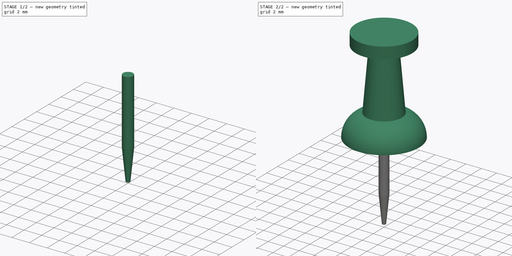
[diagram: build sequence overview — one tinted view per stage of 2, left to right]
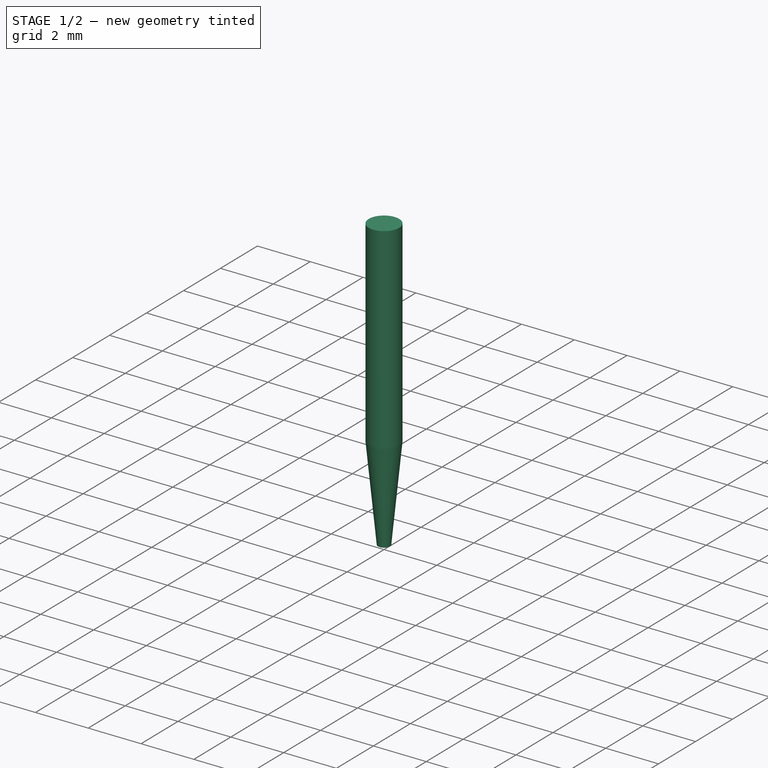
[diagram: stage 1 of 2 — iso view after this stage's code; geometry added in this stage tinted green]
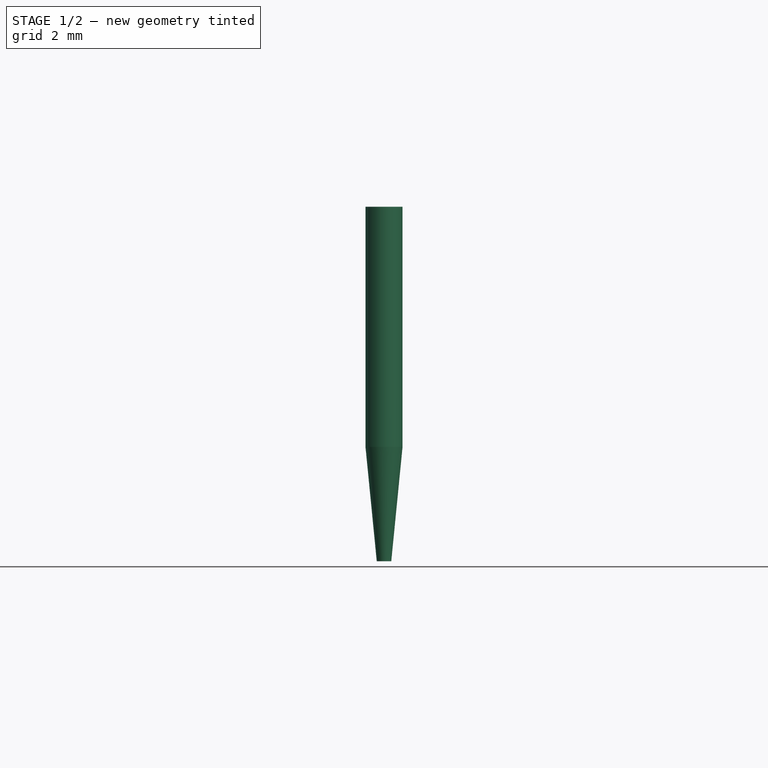
[diagram: stage 1 of 2 — front view after this stage's code; geometry added in this stage tinted green]
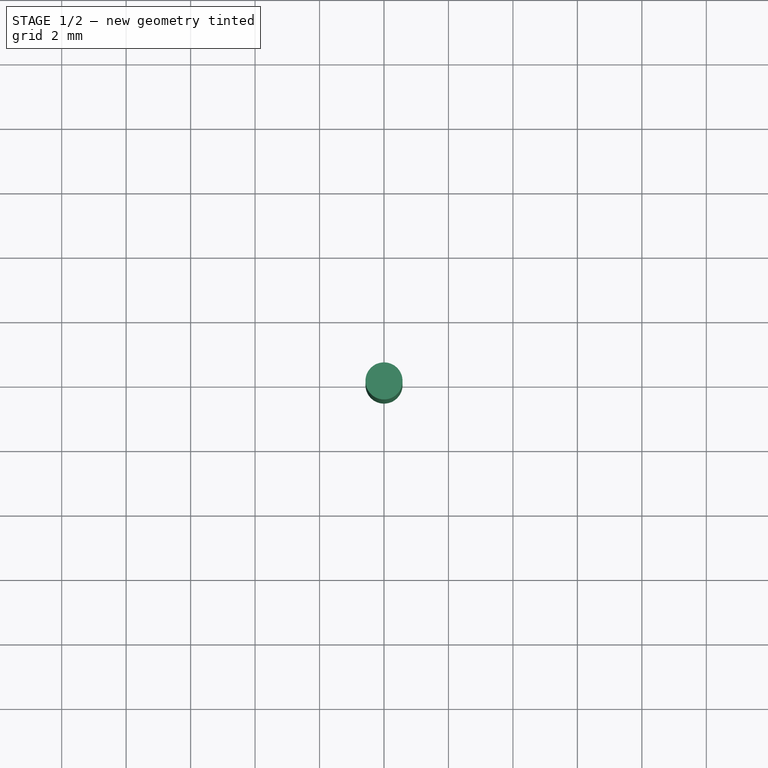
[diagram: stage 1 of 2 — top view after this stage's code; geometry added in this stage tinted green]
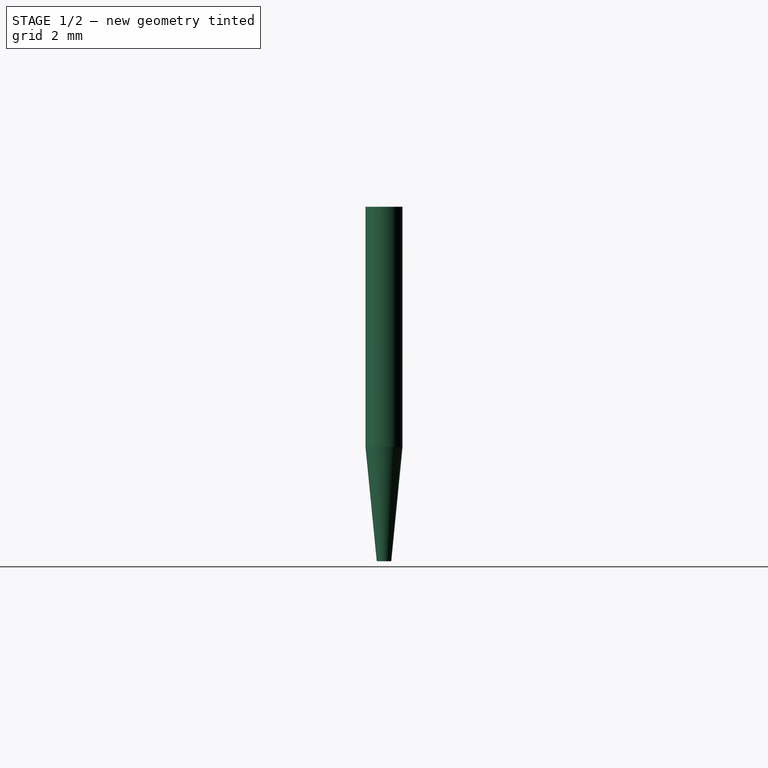
[diagram: stage 1 of 2 — right view after this stage's code; geometry added in this stage tinted green]
FCSTD DOCUMENT  (FreeCAD 0.16R6707 (Git))
Label: pushpin-model-I
License: All rights reserved
LicenseURL: http://en.wikipedia.org/wiki/All_rights_reserved
objects: Sketcher::SketchObject×2, PartDesign::Revolution×2, Part::FeaturePython×2, App::DocumentObjectGroup×1
note: 8 computed .brp shape members not serialized (recipe doc carries the construction recipe); baked Part::Feature solids carry a one-line shape summary decoded from their .brp

FEATURE [Sketcher::SketchObject] Sketch001  label="pin-sketch"
  Placement = pos=(0,0,0) rot=(-1,0,0;4.71239rad)
  expr: Constraints[19] = 0.45 / 2
  expr: Constraints[12] = 1.15 / 2
  sketch-geometry (7):
    g0: LineSegment StartX=0 StartY=0 StartZ=0 EndX=0 EndY=-10.15 EndZ=0
    g1: LineSegment StartX=0.575 StartY=-6.6 StartZ=0 EndX=0.575 EndY=0 EndZ=0
    g2: LineSegment StartX=0.575 StartY=0 StartZ=0 EndX=0.575 EndY=0.85 EndZ=0
    g3: LineSegment StartX=0.575 StartY=0.85 StartZ=0 EndX=0 EndY=0.85 EndZ=0
    g4: LineSegment StartX=0 StartY=0.85 StartZ=0 EndX=0 EndY=0 EndZ=0
    g5: LineSegment StartX=0 StartY=-10.15 StartZ=0 EndX=0.225 EndY=-10.15 EndZ=0
    g6: LineSegment StartX=0.225 StartY=-10.15 StartZ=0 EndX=0.575 EndY=-6.6 EndZ=0
  constraints (20):
    c: Coincident(g-1,g0)
    c: Vertical(g0)
    c: PointOnObject(g1,g-1)
    c: Vertical(g1)
    c: Coincident(g1,g2)
    c: Vertical(g2)
    c: Coincident(g2,g3)
    c: PointOnObject(g3,g-2)
    c: Horizontal(g3)
    c: Coincident(g3,g4)
    c: Coincident(g4,g0)
    c: DistanceY(g2,g2) = 0.85
    c: DistanceX(g3,g3) = 0.575
    c: DistanceY(g0,g0) = 10.15
    c: DistanceY(g1,g1) = 6.6
    c: Coincident(g0,g5)
    c: Coincident(g5,g6)
    c: Coincident(g6,g1)
    c: Horizontal(g5)
    c: DistanceX(g5,g5) = 0.225
FEATURE [PartDesign::Revolution] Revolution001  label="pin-src"
  Angle = 360
  Axis = (0,0,1)
  Base = (0,0,0)
  Placement = pos=(0,0,0) rot=(-1,0,0;4.71239rad)
  ReferenceAxis = -> Sketch001 [V_Axis]
  Reversed = true
  Sketch = -> Sketch001
FEATURE [App::DocumentObjectGroup] Grupo  label="src"
  Group = -> [Revolution,Revolution001]
FEATURE [Part::FeaturePython] Clone001  label="Pin"  # Draft clone (typed FeaturePython)
  Objects = -> [Revolution001]
  Placement = pos=(0,0,0) rot=(-1,0,0;4.71239rad)
  Scale = (1,1,1)
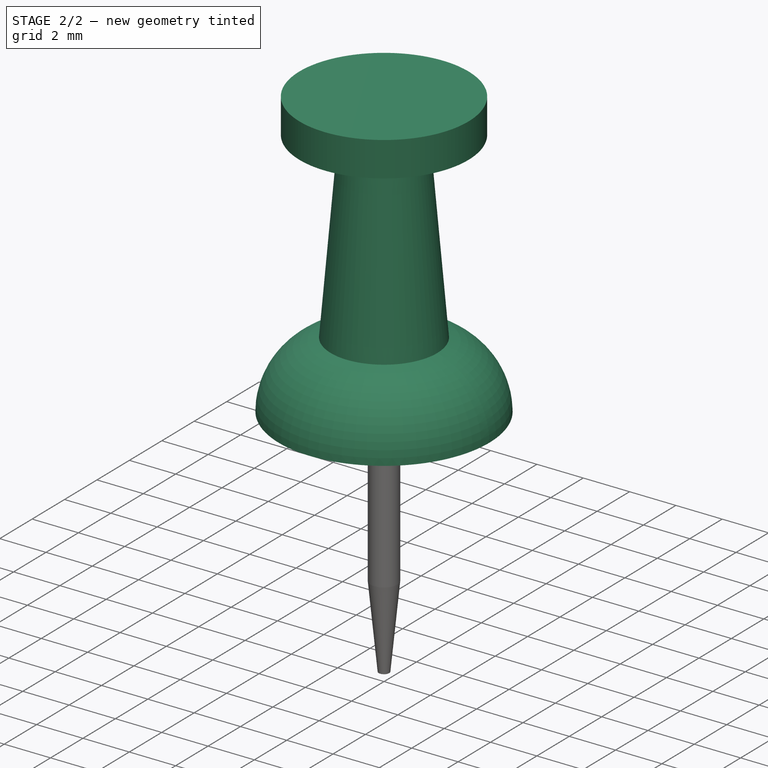
[diagram: stage 2 of 2 — iso view after this stage's code; geometry added in this stage tinted green]
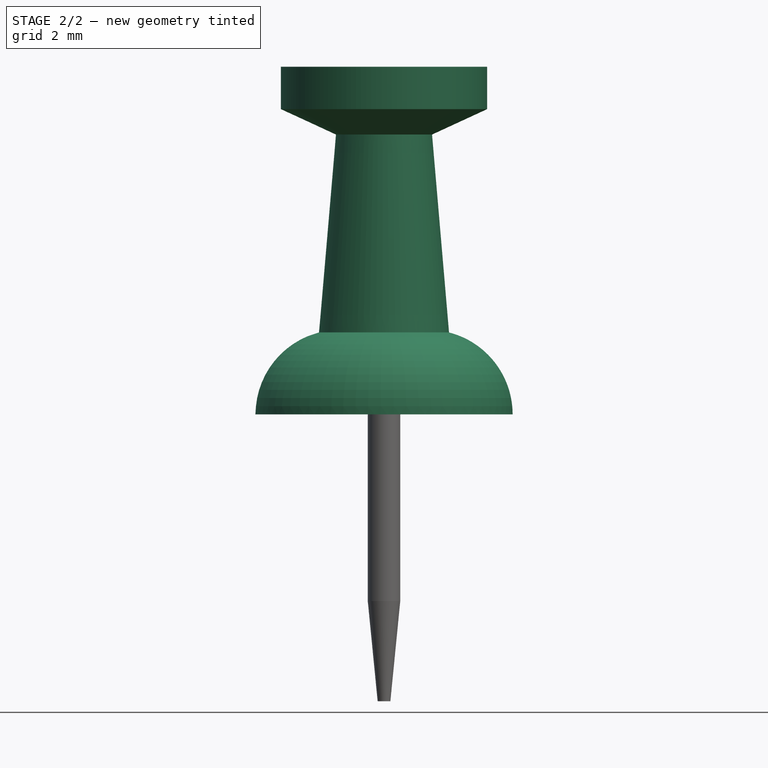
[diagram: stage 2 of 2 — front view after this stage's code; geometry added in this stage tinted green]
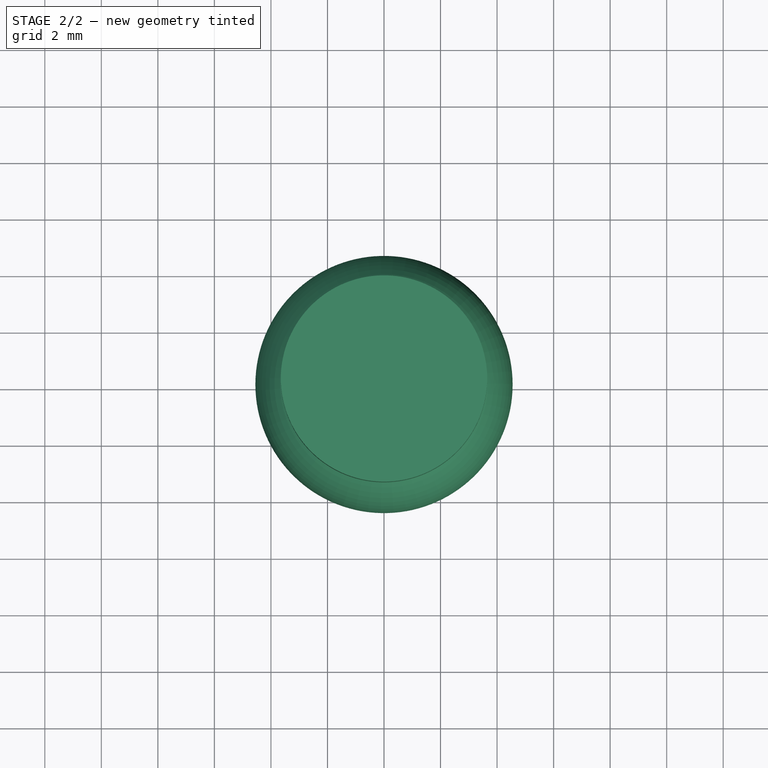
[diagram: stage 2 of 2 — top view after this stage's code; geometry added in this stage tinted green]
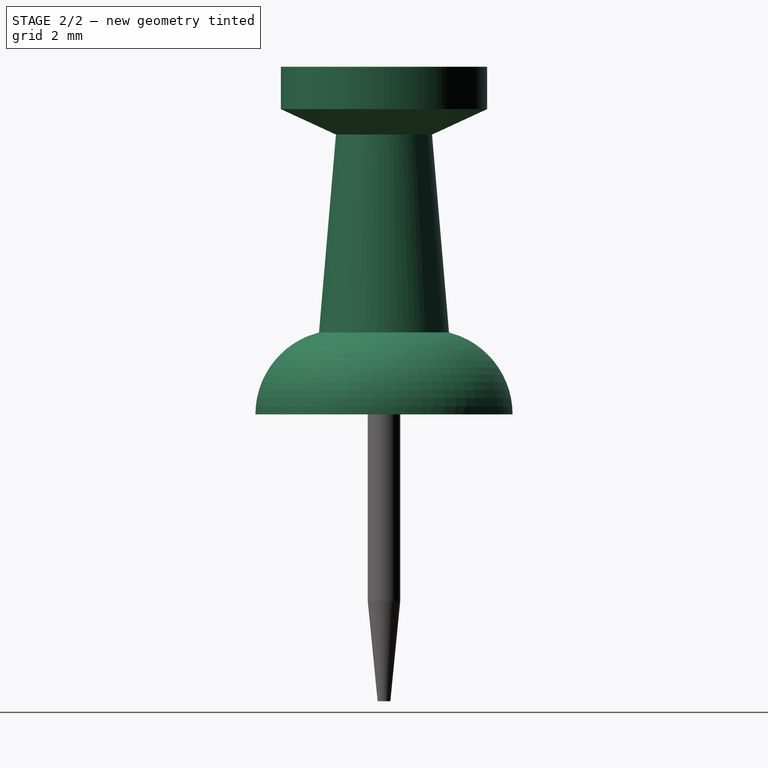
[diagram: stage 2 of 2 — right view after this stage's code; geometry added in this stage tinted green]
FEATURE [Sketcher::SketchObject] Sketch  label="Handle-sketch"
  Placement = pos=(0,0,0) rot=(-1,0,0;4.71239rad)
  expr: Constraints[25] = 1.3 / 2
  expr: Constraints[10] = 9.1 / 2
  expr: Constraints[15] = 4.6 / 2
  expr: Constraints[14] = 3.4 / 2
  expr: Constraints[8] = 7.3 / 2
  sketch-geometry (9):
    g0: LineSegment StartX=0 StartY=12.3 StartZ=0 EndX=3.65 EndY=12.3 EndZ=0
    g1: LineSegment StartX=3.65 StartY=12.3 StartZ=0 EndX=3.65 EndY=10.8 EndZ=0
    g2: LineSegment StartX=3.65 StartY=10.8 StartZ=0 EndX=1.7 EndY=9.9 EndZ=0
    g3: LineSegment StartX=1.7 StartY=9.9 StartZ=0 EndX=2.3 EndY=2.9 EndZ=0
    g4: ArcOfCircle CenterX=1.55611 CenterY=0 CenterZ=0 NormalX=0 NormalY=0 NormalZ=1 Radius=2.99389 StartAngle=0 EndAngle=1.3197
    g5: LineSegment StartX=0 StartY=12.3 StartZ=0 EndX=0 EndY=0.85 EndZ=0
    g6: LineSegment StartX=0 StartY=0.85 StartZ=0 EndX=0.65 EndY=0.85 EndZ=0
    g7: LineSegment StartX=0.65 StartY=0.85 StartZ=0 EndX=0.65 EndY=0 EndZ=0
    g8: LineSegment StartX=0.65 StartY=0 StartZ=0 EndX=4.55 EndY=0 EndZ=0
  constraints (28):
    c: PointOnObject(g0,g-2)
    c: Horizontal(g0)
    c: Coincident(g0,g1)
    c: Coincident(g1,g2)
    c: Coincident(g2,g3)
    c: PointOnObject(g4,g-1)
    c: Coincident(g4,g3)
    c: DistanceY(g-1,g0) = 12.3
    c: DistanceX(g0,g0) = 3.65
    c: Vertical(g1)
    c: DistanceX(g-1,g4) = 4.55
    c: DistanceY(g3,g2) = 7
    c: DistanceY(g1,g1) = 1.5
    c: DistanceY(g2,g0) = 2.4
    c: DistanceX(g0,g2) = 1.7
    c: DistanceX(g-1,g3) = 2.3
    c: Coincident(g0,g5)
    c: Vertical(g5)
    c: Coincident(g5,g6)
    c: Horizontal(g6)
    c: Coincident(g6,g7)
    c: Vertical(g7)
    c: Coincident(g7,g8)
    c: Coincident(g8,g4)
    c: Horizontal(g8)
    c: DistanceX(g6,g6) = 0.65
    c: DistanceY(g7,g7) = 0.85
    c: PointOnObject(g4,g8)
FEATURE [PartDesign::Revolution] Revolution  label="handle-src"
  Angle = 360
  Axis = (0,0,1)
  Base = (0,0,0)
  Placement = pos=(0,0,0) rot=(-1,0,0;4.71239rad)
  ReferenceAxis = -> Sketch [V_Axis]
  Sketch = -> Sketch
FEATURE [Part::FeaturePython] Clone  label="Handle"  # Draft clone (typed FeaturePython)
  Objects = -> [Revolution]
  Placement = pos=(0,0,0) rot=(-1,0,0;4.71239rad)
  Scale = (1,1,1)
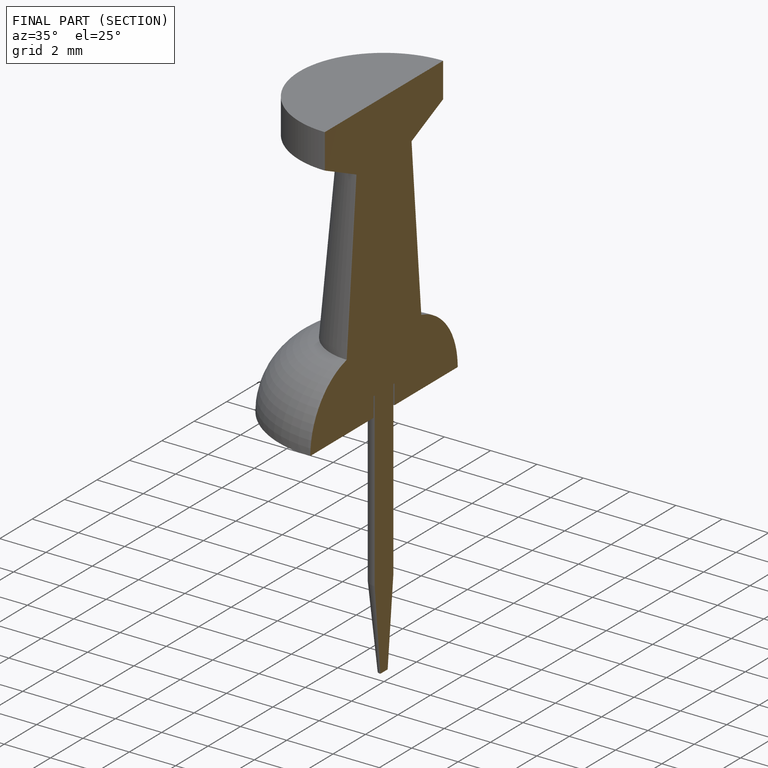
[diagram: finished part — half-section view (interior)]
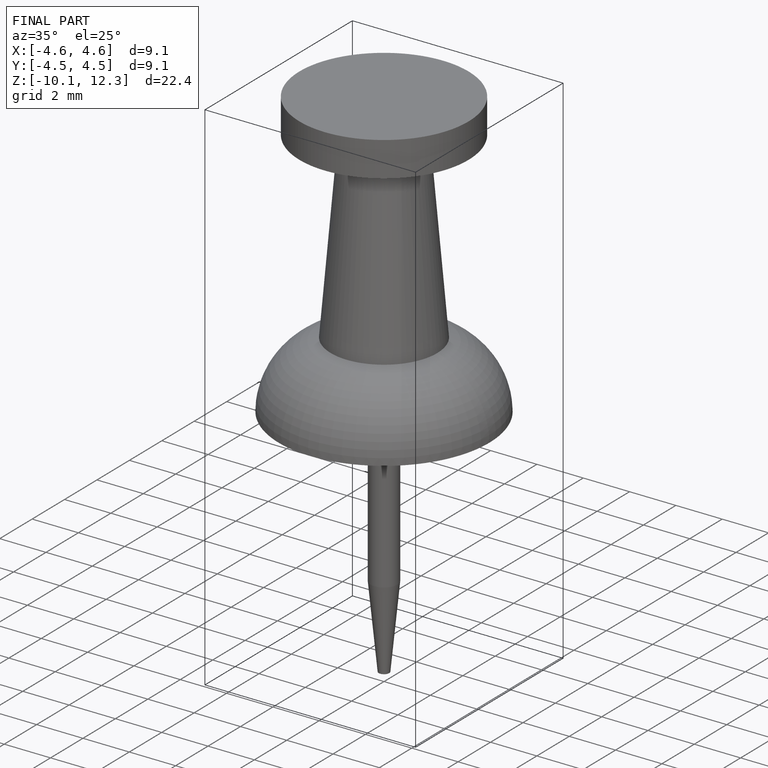
[diagram: finished part — iso view with bounding-box wireframe]
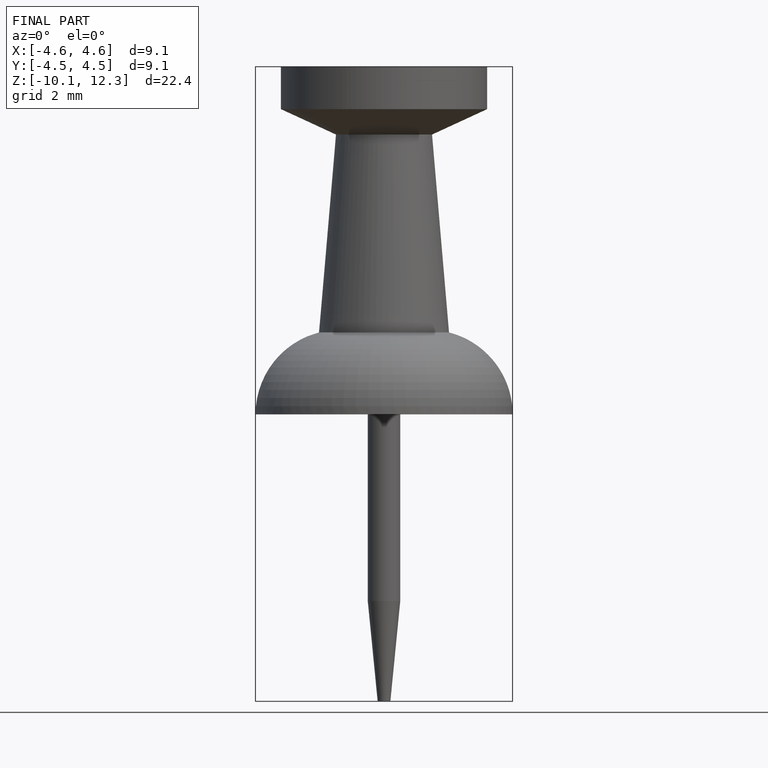
[diagram: finished part — front view with bounding-box wireframe]
